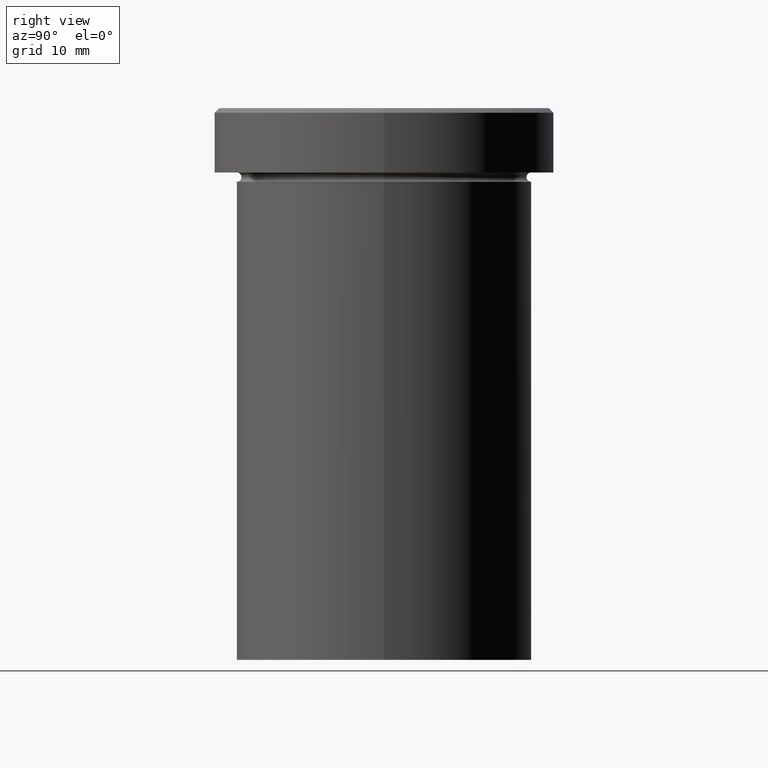
[diagram: clean part render]
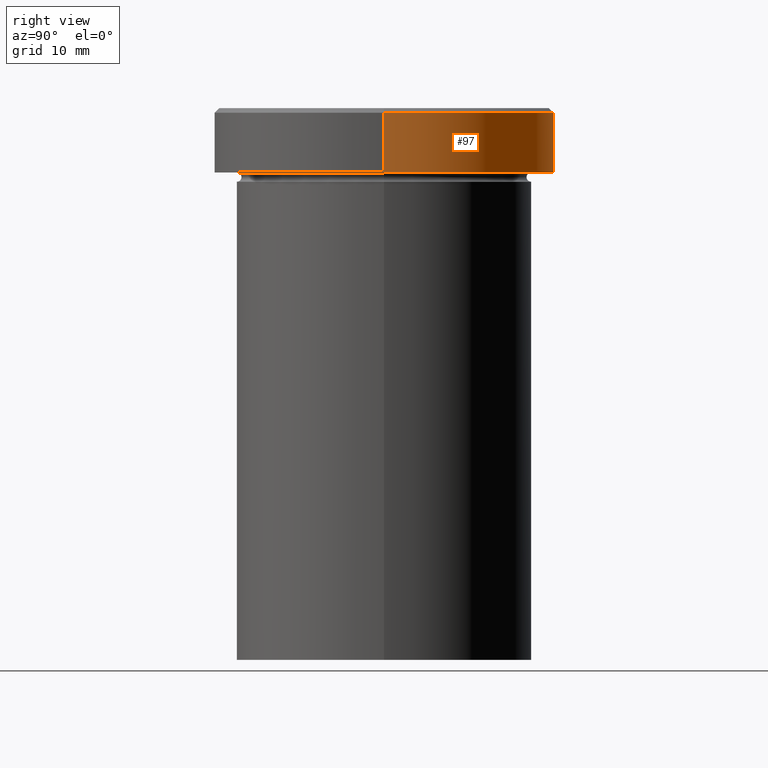
[diagram: same view with one face highlighted and labeled with its STEP entity id]
A machine part, right view. The second image highlights one B-rep face of the part: STEP entity #97.
In plain terms, the highlighted cylindrical surface (partial cylindrical patch) has radius 18.5 mm, axis along (-0, -0, 1).
Its self-contained STEP definition (entity closure, byte-faithful):
#4 = EDGE_CURVE ( 'NONE', #205, #122, #215, .T. ) ;
#16 = DIRECTION ( 'NONE',  ( -0.000000000000000000, -0.000000000000000000, 1.000000000000000000 ) ) ;
#25 = AXIS2_PLACEMENT_3D ( 'NONE', #172, #16, #48 ) ;
#36 = EDGE_LOOP ( 'NONE', ( #182, #223, #39, #155 ) ) ;
#39 = ORIENTED_EDGE ( 'NONE', *, *, #87, .T. ) ;
#43 = CARTESIAN_POINT ( 'NONE',  ( 0.000000000000000000, 0.000000000000000000, 0.000000000000000000 ) ) ;
#47 = CARTESIAN_POINT ( 'NONE',  ( 18.50000000000000000, 0.000000000000000000, 0.000000000000000000 ) ) ;
#48 = DIRECTION ( 'NONE',  ( 1.000000000000000000, 0.000000000000000000, 0.000000000000000000 ) ) ;
#63 = CYLINDRICAL_SURFACE ( 'NONE', #64, 18.50000000000000000 ) ;
#64 = AXIS2_PLACEMENT_3D ( 'NONE', #43, #272, #149 ) ;
#70 = VECTOR ( 'NONE', #118, 1000.000000000000000 ) ;
#87 = EDGE_CURVE ( 'NONE', #221, #122, #183, .T. ) ;
#90 = DIRECTION ( 'NONE',  ( 0.000000000000000000, 0.000000000000000000, -1.000000000000000000 ) ) ;
#97 = ADVANCED_FACE ( 'NONE', ( #342 ), #63, .T. ) ;
#106 = LINE ( 'NONE', #360, #128 ) ;
#118 = DIRECTION ( 'NONE',  ( -0.000000000000000000, -0.000000000000000000, 1.000000000000000000 ) ) ;
#122 = VERTEX_POINT ( 'NONE', #169 ) ;
#128 = VECTOR ( 'NONE', #138, 1000.000000000000000 ) ;
#138 = DIRECTION ( 'NONE',  ( -0.000000000000000000, -0.000000000000000000, 1.000000000000000000 ) ) ;
#149 = DIRECTION ( 'NONE',  ( 1.000000000000000000, 0.000000000000000000, 0.000000000000000000 ) ) ;
#155 = ORIENTED_EDGE ( 'NONE', *, *, #4, .F. ) ;
#169 = CARTESIAN_POINT ( 'NONE',  ( 18.50000000000000000, 0.000000000000000000, -0.4999999999999865663 ) ) ;
#172 = CARTESIAN_POINT ( 'NONE',  ( 0.000000000000000000, 0.000000000000000000, -6.999999999999998224 ) ) ;
#182 = ORIENTED_EDGE ( 'NONE', *, *, #210, .T. ) ;
#183 = CIRCLE ( 'NONE', #333, 18.50000000000000000 ) ;
#205 = VERTEX_POINT ( 'NONE', #382 ) ;
#210 = EDGE_CURVE ( 'NONE', #205, #267, #270, .T. ) ;
#215 = LINE ( 'NONE', #47, #70 ) ;
#221 = VERTEX_POINT ( 'NONE', #357 ) ;
#223 = ORIENTED_EDGE ( 'NONE', *, *, #240, .T. ) ;
#240 = EDGE_CURVE ( 'NONE', #267, #221, #106, .T. ) ;
#267 = VERTEX_POINT ( 'NONE', #326 ) ;
#270 = CIRCLE ( 'NONE', #25, 18.50000000000000000 ) ;
#272 = DIRECTION ( 'NONE',  ( -0.000000000000000000, -0.000000000000000000, 1.000000000000000000 ) ) ;
#326 = CARTESIAN_POINT ( 'NONE',  ( -18.50000000000000000, 2.265596578422603396E-15, -6.999999999999998224 ) ) ;
#333 = AXIS2_PLACEMENT_3D ( 'NONE', #401, #90, #368 ) ;
#342 = FACE_OUTER_BOUND ( 'NONE', #36, .T. ) ;
#357 = CARTESIAN_POINT ( 'NONE',  ( -18.50000000000000000, 2.265596578422603396E-15, -0.4999999999999865663 ) ) ;
#360 = CARTESIAN_POINT ( 'NONE',  ( -18.50000000000000000, 2.265596578422603396E-15, 0.000000000000000000 ) ) ;
#368 = DIRECTION ( 'NONE',  ( 1.000000000000000000, 0.000000000000000000, 0.000000000000000000 ) ) ;
#382 = CARTESIAN_POINT ( 'NONE',  ( 18.50000000000000000, 0.000000000000000000, -6.999999999999998224 ) ) ;
#401 = CARTESIAN_POINT ( 'NONE',  ( 0.000000000000000000, 0.000000000000000000, -0.4999999999999865663 ) ) ;